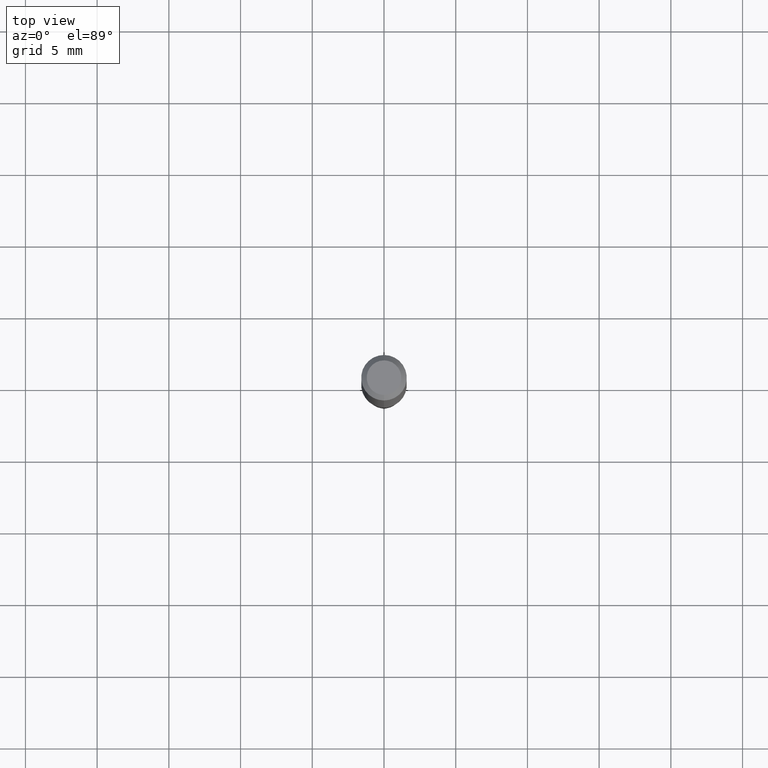
[diagram: clean part render]
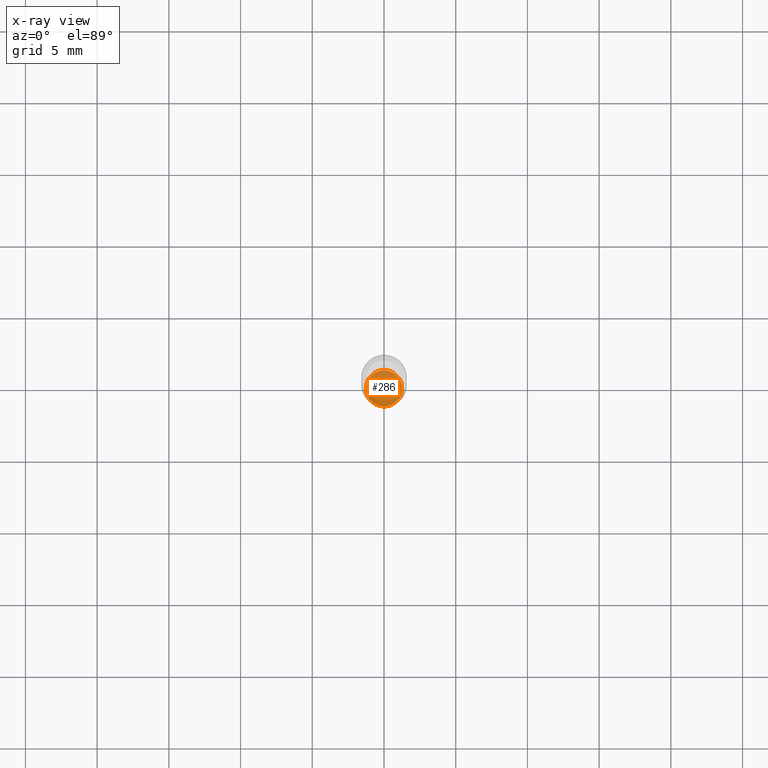
[diagram: x-ray — body ghosted, one internal face saturated and labeled with its STEP entity id]
A machine part, top view, then the same camera in x-ray: the body is ghosted and one INTERNAL B-rep face — a face not visible from any outside direction — is saturated and labeled: STEP entity #286.
In plain terms, the highlighted planar face has unit normal (-0, 0, 1).
Its self-contained STEP definition (entity closure, byte-faithful):
#6 = CARTESIAN_POINT ( 'NONE',  ( -3.491481338842715752E-16, -0.05000000000000592165, -1.699999999999999734 ) ) ;
#52 = AXIS2_PLACEMENT_3D ( 'NONE', #428, #358, #294 ) ;
#107 = ORIENTED_EDGE ( 'NONE', *, *, #292, .F. ) ;
#166 = DIRECTION ( 'NONE',  ( -2.445393163361418932E-29, 3.491589663672031221E-15, 1.000000000000000000 ) ) ;
#170 = DIRECTION ( 'NONE',  ( -2.445393163361418372E-29, 3.491589663672031616E-15, 1.000000000000000000 ) ) ;
#174 = EDGE_CURVE ( 'NONE', #476, #381, #354, .T. ) ;
#186 = FACE_OUTER_BOUND ( 'NONE', #331, .T. ) ;
#240 = CARTESIAN_POINT ( 'NONE',  ( 3.552713678800914786E-16, 0.04999999999999404227, -1.700000000000000178 ) ) ;
#271 = CIRCLE ( 'NONE', #52, 0.05000000000000000278 ) ;
#286 = ADVANCED_FACE ( 'NONE', ( #186 ), #396, .F. ) ;
#292 = EDGE_CURVE ( 'NONE', #381, #476, #271, .T. ) ;
#294 = DIRECTION ( 'NONE',  ( -6.982962677686265133E-15, -1.000000000000000000, 5.463695987328526437E-15 ) ) ;
#297 = AXIS2_PLACEMENT_3D ( 'NONE', #410, #166, #415 ) ;
#331 = EDGE_LOOP ( 'NONE', ( #107, #407 ) ) ;
#335 = AXIS2_PLACEMENT_3D ( 'NONE', #356, #170, #382 ) ;
#354 = CIRCLE ( 'NONE', #297, 0.05000000000000000278 ) ;
#356 = CARTESIAN_POINT ( 'NONE',  ( 3.491481338843548493E-16, 0.04999999999999407002, -1.700000000000000178 ) ) ;
#358 = DIRECTION ( 'NONE',  ( -2.445393163361418932E-29, 3.491589663672031221E-15, 1.000000000000000000 ) ) ;
#381 = VERTEX_POINT ( 'NONE', #6 ) ;
#382 = DIRECTION ( 'NONE',  ( -6.982962677686265922E-15, -1.000000000000000000, 3.491589663672031616E-15 ) ) ;
#396 = PLANE ( 'NONE',  #335 ) ;
#407 = ORIENTED_EDGE ( 'NONE', *, *, #174, .F. ) ;
#410 = CARTESIAN_POINT ( 'NONE',  ( 4.157168377714411961E-29, -5.935702428242452761E-15, -1.699999999999999956 ) ) ;
#415 = DIRECTION ( 'NONE',  ( -6.982962677686265133E-15, -1.000000000000000000, 5.463695987328526437E-15 ) ) ;
#428 = CARTESIAN_POINT ( 'NONE',  ( 4.157168377714411961E-29, -5.935702428242452761E-15, -1.699999999999999956 ) ) ;
#476 = VERTEX_POINT ( 'NONE', #240 ) ;